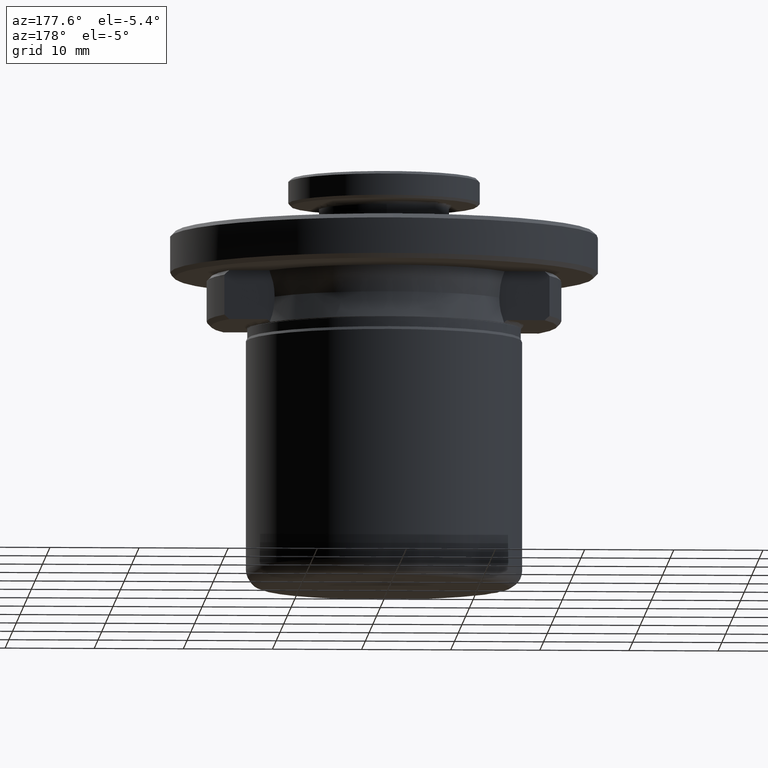
[diagram: clean part render]
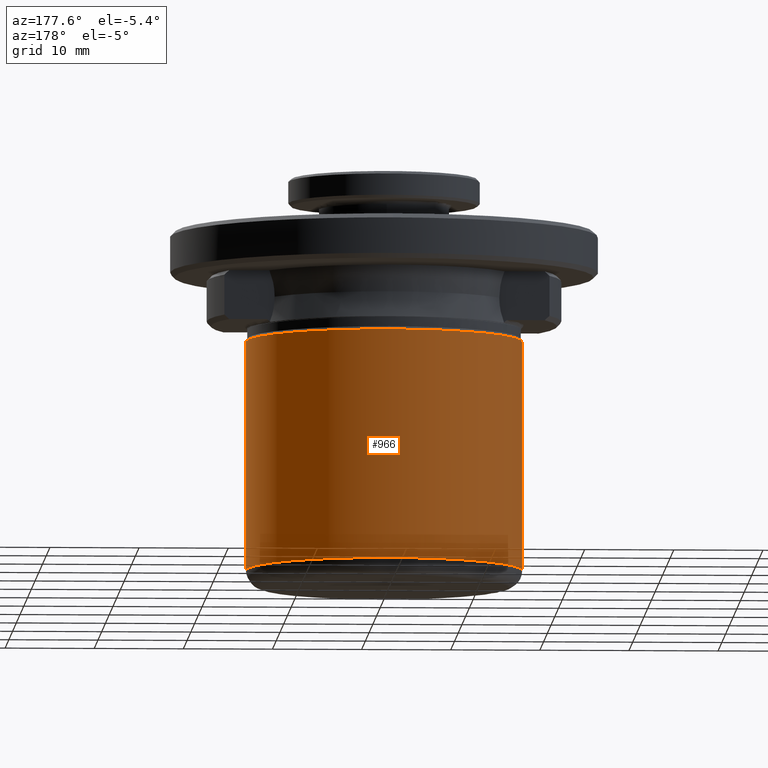
[diagram: same view with one face highlighted and labeled with its STEP entity id]
A machine part, auxiliary view. The second image highlights one B-rep face of the part: STEP entity #966.
In plain terms, the highlighted cylindrical surface (partial cylindrical patch) has radius 15.5 mm, axis along (0, -0, 1).
Its self-contained STEP definition (entity closure, byte-faithful):
#3 = EDGE_CURVE ( 'NONE', #8, #1673, #1411, .T. ) ;
#8 = VERTEX_POINT ( 'NONE', #242 ) ;
#22 = VECTOR ( 'NONE', #1058, 1000.000000000000000 ) ;
#135 = VERTEX_POINT ( 'NONE', #967 ) ;
#137 = DIRECTION ( 'NONE',  ( 1.000000000000000000, 0.0000000000000000000, 0.0000000000000000000 ) ) ;
#231 = CARTESIAN_POINT ( 'NONE',  ( 15.50000000000000000, 0.0000000000000000000, -18.26487427900000100 ) ) ;
#242 = CARTESIAN_POINT ( 'NONE',  ( 15.50000000000000000, 0.0000000000000000000, -25.56151438499999900 ) ) ;
#245 = EDGE_CURVE ( 'NONE', #135, #1673, #258, .T. ) ;
#258 = CIRCLE ( 'NONE', #1709, 15.50000000000000000 ) ;
#267 = DIRECTION ( 'NONE',  ( -1.000000000000000000, 0.0000000000000000000, -8.743565907141165300E-017 ) ) ;
#273 = DIRECTION ( 'NONE',  ( 0.0000000000000000000, -0.0000000000000000000, 1.000000000000000000 ) ) ;
#377 = EDGE_CURVE ( 'NONE', #1298, #135, #1215, .T. ) ;
#378 = EDGE_CURVE ( 'NONE', #8, #1298, #1549, .T. ) ;
#449 = ORIENTED_EDGE ( 'NONE', *, *, #377, .T. ) ;
#480 = CARTESIAN_POINT ( 'NONE',  ( 0.0000000000000000000, 0.0000000000000000000, -25.56151438499999900 ) ) ;
#489 = AXIS2_PLACEMENT_3D ( 'NONE', #987, #1866, #1138 ) ;
#607 = CARTESIAN_POINT ( 'NONE',  ( -15.50000000000000000, 1.898202538678397600E-015, -25.56151438499999900 ) ) ;
#883 = ORIENTED_EDGE ( 'NONE', *, *, #378, .T. ) ;
#889 = CARTESIAN_POINT ( 'NONE',  ( -15.50000000000000000, 1.898202538678397600E-015, -18.26487427900000100 ) ) ;
#966 = ADVANCED_FACE ( 'NONE', ( #1402 ), #1699, .T. ) ;
#967 = CARTESIAN_POINT ( 'NONE',  ( -15.50000000000000000, 1.898202538678397600E-015, 0.1784856150000013700 ) ) ;
#987 = CARTESIAN_POINT ( 'NONE',  ( 0.0000000000000000000, 0.0000000000000000000, -18.26487427900000100 ) ) ;
#990 = AXIS2_PLACEMENT_3D ( 'NONE', #480, #1213, #137 ) ;
#995 = EDGE_LOOP ( 'NONE', ( #883, #449, #1146, #1778 ) ) ;
#1004 = CARTESIAN_POINT ( 'NONE',  ( 0.0000000000000000000, 0.0000000000000000000, 0.1784856150000013700 ) ) ;
#1027 = VECTOR ( 'NONE', #273, 1000.000000000000000 ) ;
#1058 = DIRECTION ( 'NONE',  ( 0.0000000000000000000, -0.0000000000000000000, 1.000000000000000000 ) ) ;
#1059 = CARTESIAN_POINT ( 'NONE',  ( 15.50000000000000000, 0.0000000000000000000, 0.1784856150000013700 ) ) ;
#1104 = DIRECTION ( 'NONE',  ( 0.0000000000000000000, 0.0000000000000000000, -1.000000000000000000 ) ) ;
#1138 = DIRECTION ( 'NONE',  ( 1.000000000000000000, 0.0000000000000000000, 0.0000000000000000000 ) ) ;
#1146 = ORIENTED_EDGE ( 'NONE', *, *, #245, .T. ) ;
#1213 = DIRECTION ( 'NONE',  ( 0.0000000000000000000, 0.0000000000000000000, 1.000000000000000000 ) ) ;
#1215 = LINE ( 'NONE', #889, #22 ) ;
#1298 = VERTEX_POINT ( 'NONE', #607 ) ;
#1402 = FACE_OUTER_BOUND ( 'NONE', #995, .T. ) ;
#1411 = LINE ( 'NONE', #231, #1027 ) ;
#1549 = CIRCLE ( 'NONE', #990, 15.50000000000000000 ) ;
#1673 = VERTEX_POINT ( 'NONE', #1059 ) ;
#1699 = CYLINDRICAL_SURFACE ( 'NONE', #489, 15.50000000000000000 ) ;
#1709 = AXIS2_PLACEMENT_3D ( 'NONE', #1004, #1104, #267 ) ;
#1778 = ORIENTED_EDGE ( 'NONE', *, *, #3, .F. ) ;
#1866 = DIRECTION ( 'NONE',  ( 0.0000000000000000000, -0.0000000000000000000, 1.000000000000000000 ) ) ;